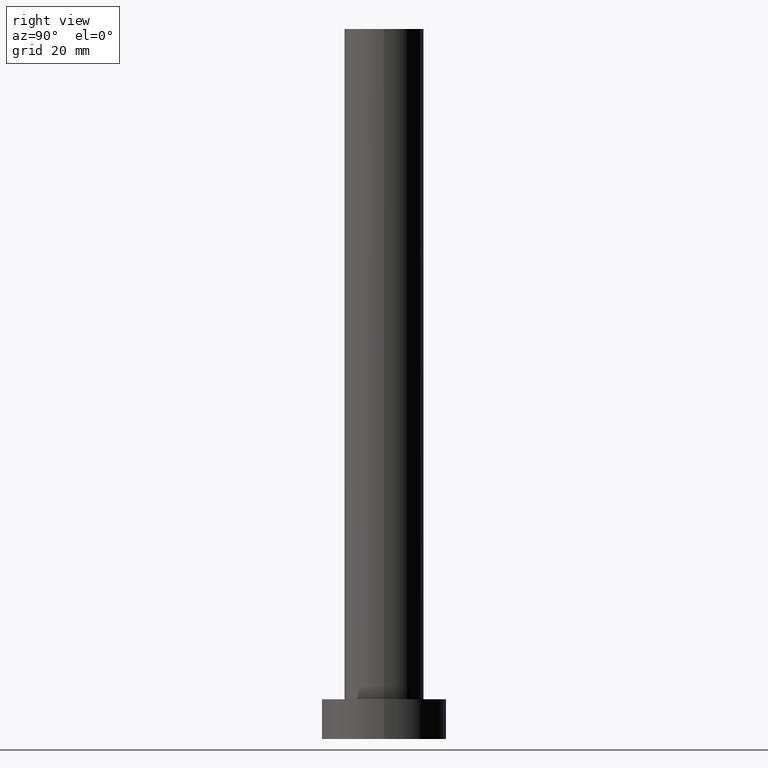
[diagram: clean part render]
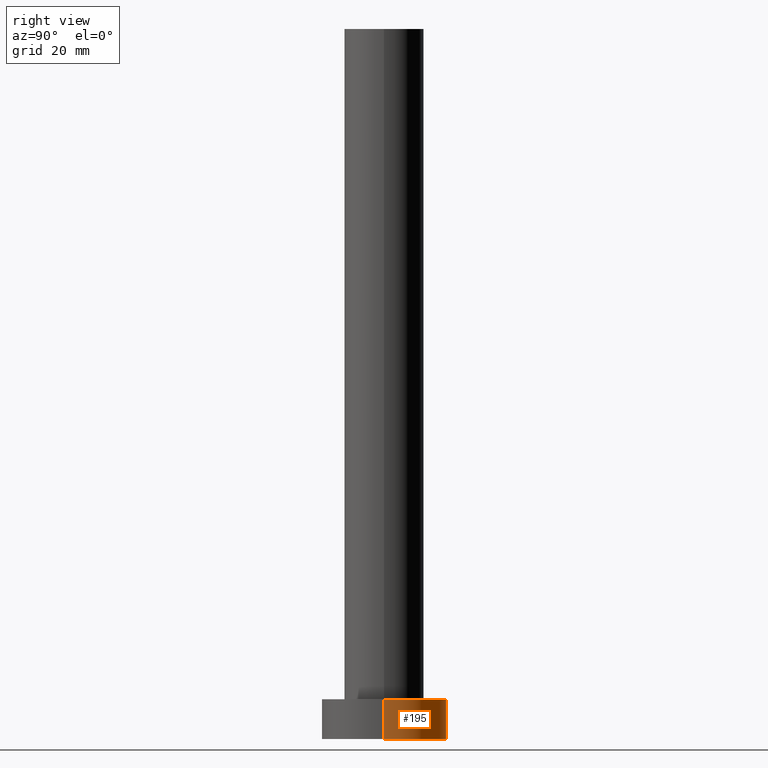
[diagram: same view with one face highlighted and labeled with its STEP entity id]
A machine part, right view. The second image highlights one B-rep face of the part: STEP entity #195.
In plain terms, the highlighted cylindrical surface (partial cylindrical patch) has radius 11 mm, axis along (-0, -0, -1).
Its self-contained STEP definition (entity closure, byte-faithful):
#13 = DIRECTION ( 'NONE',  ( 0.000000000000000000, 0.000000000000000000, 1.000000000000000000 ) ) ;
#17 = CARTESIAN_POINT ( 'NONE',  ( 0.000000000000000000, 0.000000000000000000, 7.000000000000000000 ) ) ;
#19 = DIRECTION ( 'NONE',  ( -0.000000000000000000, -0.000000000000000000, -1.000000000000000000 ) ) ;
#42 = DIRECTION ( 'NONE',  ( -0.000000000000000000, -0.000000000000000000, -1.000000000000000000 ) ) ;
#53 = DIRECTION ( 'NONE',  ( 1.000000000000000000, 0.000000000000000000, 0.000000000000000000 ) ) ;
#57 = CARTESIAN_POINT ( 'NONE',  ( 11.00000000000000000, 1.347111479062088405E-15, 0.000000000000000000 ) ) ;
#60 = EDGE_CURVE ( 'NONE', #123, #133, #225, .T. ) ;
#62 = LINE ( 'NONE', #196, #180 ) ;
#65 = AXIS2_PLACEMENT_3D ( 'NONE', #188, #13, #165 ) ;
#72 = EDGE_CURVE ( 'NONE', #133, #153, #222, .T. ) ;
#75 = EDGE_LOOP ( 'NONE', ( #130, #88, #201, #212 ) ) ;
#87 = CIRCLE ( 'NONE', #174, 11.00000000000000000 ) ;
#88 = ORIENTED_EDGE ( 'NONE', *, *, #60, .T. ) ;
#95 = VERTEX_POINT ( 'NONE', #143 ) ;
#113 = VECTOR ( 'NONE', #19, 1000.000000000000000 ) ;
#123 = VERTEX_POINT ( 'NONE', #146 ) ;
#130 = ORIENTED_EDGE ( 'NONE', *, *, #199, .F. ) ;
#133 = VERTEX_POINT ( 'NONE', #57 ) ;
#138 = AXIS2_PLACEMENT_3D ( 'NONE', #17, #42, #210 ) ;
#141 = EDGE_CURVE ( 'NONE', #95, #153, #62, .T. ) ;
#143 = CARTESIAN_POINT ( 'NONE',  ( -11.00000000000000000, 0.000000000000000000, 7.000000000000000000 ) ) ;
#144 = CARTESIAN_POINT ( 'NONE',  ( -11.00000000000000000, 0.000000000000000000, 0.000000000000000000 ) ) ;
#146 = CARTESIAN_POINT ( 'NONE',  ( 11.00000000000000000, 1.347111479062088405E-15, 7.000000000000000000 ) ) ;
#153 = VERTEX_POINT ( 'NONE', #144 ) ;
#165 = DIRECTION ( 'NONE',  ( 1.000000000000000000, 0.000000000000000000, 0.000000000000000000 ) ) ;
#174 = AXIS2_PLACEMENT_3D ( 'NONE', #224, #245, #53 ) ;
#176 = DIRECTION ( 'NONE',  ( -0.000000000000000000, -0.000000000000000000, -1.000000000000000000 ) ) ;
#180 = VECTOR ( 'NONE', #176, 1000.000000000000000 ) ;
#188 = CARTESIAN_POINT ( 'NONE',  ( 0.000000000000000000, 0.000000000000000000, 0.000000000000000000 ) ) ;
#191 = FACE_OUTER_BOUND ( 'NONE', #75, .T. ) ;
#195 = ADVANCED_FACE ( 'NONE', ( #191 ), #249, .T. ) ;
#196 = CARTESIAN_POINT ( 'NONE',  ( -11.00000000000000000, 0.000000000000000000, 7.000000000000000000 ) ) ;
#199 = EDGE_CURVE ( 'NONE', #123, #95, #87, .T. ) ;
#201 = ORIENTED_EDGE ( 'NONE', *, *, #72, .T. ) ;
#209 = CARTESIAN_POINT ( 'NONE',  ( 11.00000000000000000, 1.347111479062088405E-15, 7.000000000000000000 ) ) ;
#210 = DIRECTION ( 'NONE',  ( -1.000000000000000000, 0.000000000000000000, 0.000000000000000000 ) ) ;
#212 = ORIENTED_EDGE ( 'NONE', *, *, #141, .F. ) ;
#222 = CIRCLE ( 'NONE', #65, 11.00000000000000000 ) ;
#224 = CARTESIAN_POINT ( 'NONE',  ( 0.000000000000000000, 0.000000000000000000, 7.000000000000000000 ) ) ;
#225 = LINE ( 'NONE', #209, #113 ) ;
#245 = DIRECTION ( 'NONE',  ( 0.000000000000000000, 0.000000000000000000, 1.000000000000000000 ) ) ;
#249 = CYLINDRICAL_SURFACE ( 'NONE', #138, 11.00000000000000000 ) ;